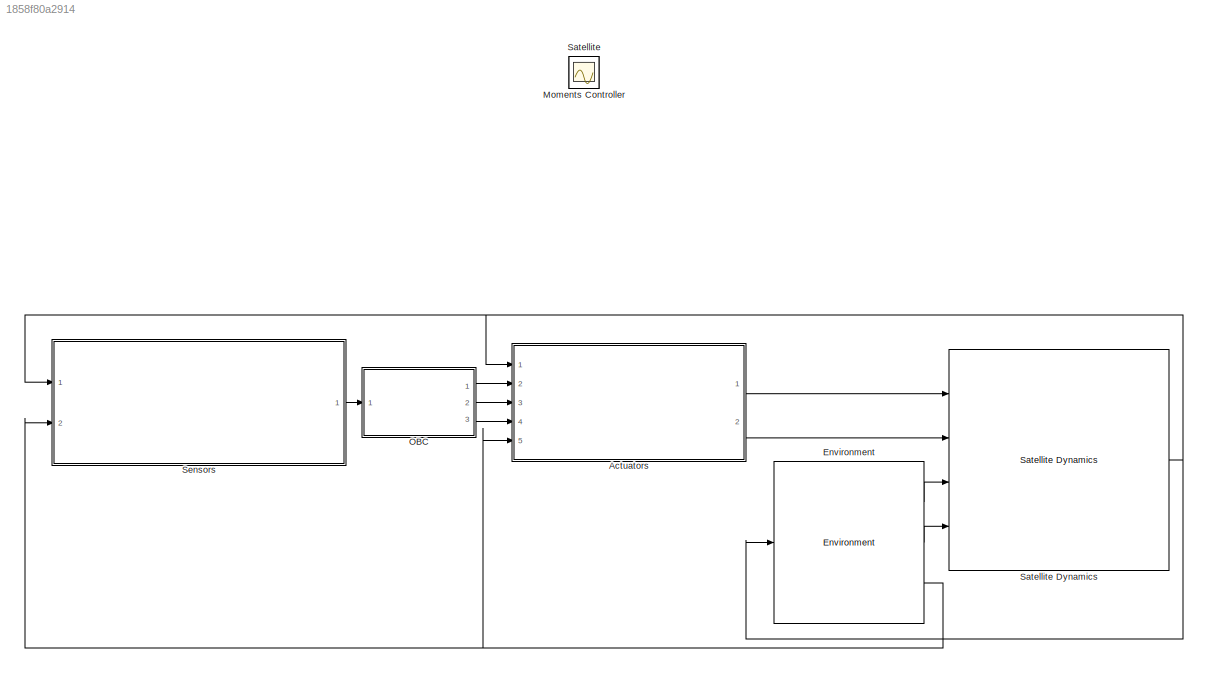
MODEL slx_1858f80a2914
KIND model
CONFIG AbsTol = auto
CONFIG EnableMultiTasking = off
CONFIG FixedStep = 0.0025
CONFIG MaxStep = 1
CONFIG MinStep = dT
CONFIG RelTol = 1e-3
CONFIG SampleTimeConstraint = Unconstrained
CONFIG Solver = ode14x
CONFIG SolverName = ode14x
CONFIG StartTime = 0.0
CONFIG StopTime = 1
WORKSPACE source: mxarray member
WORKSPACE actuators = 0
WORKSPACE delay = 1
WORKSPACE displacement = 1
WORKSPACE i_max = 1
WORKSPACE torq_max = 1
WORKSPACE vel_max = 1
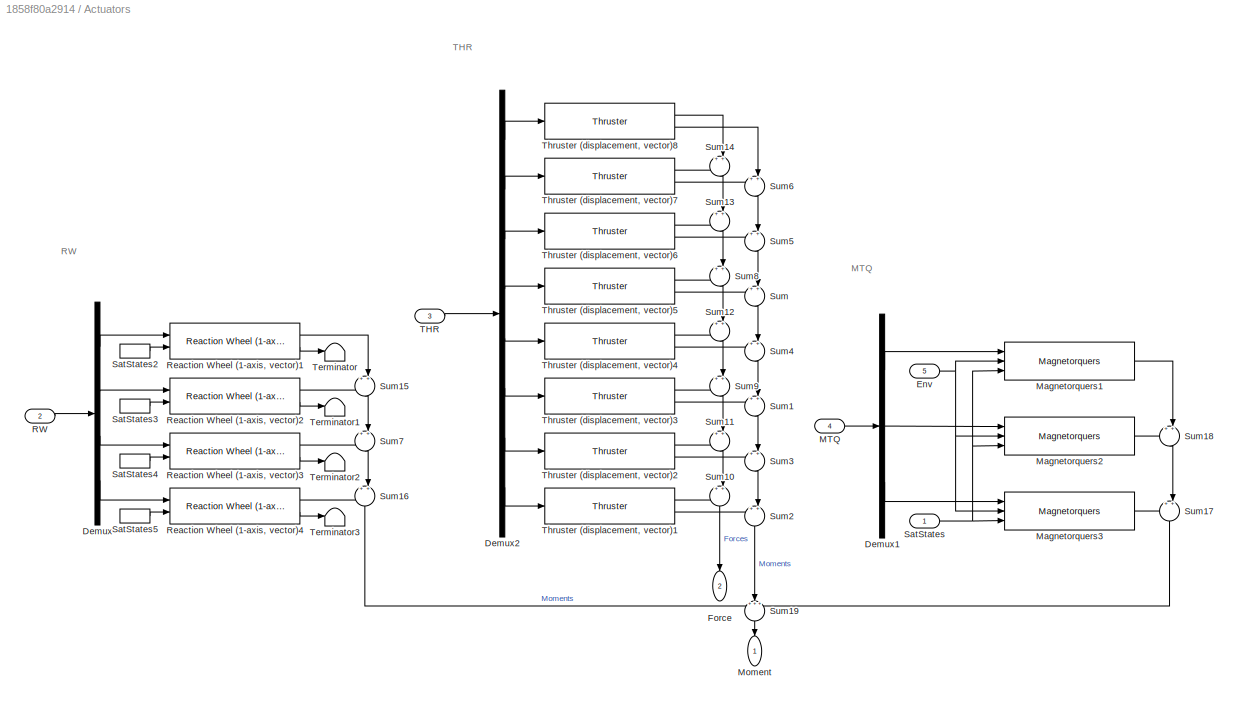
BLOCK [SubSystem] Actuators
  Ports = [5, 2]
  RequestExecContextInheritance = off
BLOCK [Demux] Actuators/Demux
  DisplayOption = bar
  Ports = [1, 4]
BLOCK [Demux] Actuators/Demux1
  DisplayOption = bar
  Outputs = 3
  Ports = [1, 3]
BLOCK [Demux] Actuators/Demux2
  DisplayOption = bar
  Outputs = 8
  Ports = [1, 8]
BLOCK [Inport] Actuators/Env
  IconDisplay = Port number
  Port = 5
BLOCK [Outport] Actuators/Force
  IconDisplay = Port number
  Port = 2
BLOCK [Inport] Actuators/MTQ
  IconDisplay = Port number
  Port = 4
BLOCK [Reference] Actuators/Magnetorquers1  REF=scars_library/Actuators/Magnetorquers  (lib defined in slx_0992aaab4a30)
  Ports = [3, 1]
  SourceBlock = scars_library/Actuators/Magnetorquers
BLOCK [Reference] Actuators/Magnetorquers2  REF=scars_library/Actuators/Magnetorquers  (lib defined in slx_0992aaab4a30)
  Ports = [3, 1]
  SourceBlock = scars_library/Actuators/Magnetorquers
BLOCK [Reference] Actuators/Magnetorquers3  REF=scars_library/Actuators/Magnetorquers  (lib defined in slx_0992aaab4a30)
  Ports = [3, 1]
  SourceBlock = scars_library/Actuators/Magnetorquers
BLOCK [Outport] Actuators/Moment
  IconDisplay = Port number
BLOCK [Inport] Actuators/RW
  IconDisplay = Port number
  Port = 2
BLOCK [Reference] Actuators/Reaction Wheel (1-axis, vector)1  REF=scars_library/Actuators/Reaction Wheel (1-axis, vector)  (lib defined in slx_0992aaab4a30)
  Ports = [2, 2]
  SourceBlock = scars_library/Actuators/Reaction Wheel (1-axis, vector)
  SourceType = Reaction Wheel
BLOCK [Reference] Actuators/Reaction Wheel (1-axis, vector)2  REF=scars_library/Actuators/Reaction Wheel (1-axis, vector)  (lib defined in slx_0992aaab4a30)
  Ports = [2, 2]
  SourceBlock = scars_library/Actuators/Reaction Wheel (1-axis, vector)
  SourceType = Reaction Wheel
BLOCK [Reference] Actuators/Reaction Wheel (1-axis, vector)3  REF=scars_library/Actuators/Reaction Wheel (1-axis, vector)  (lib defined in slx_0992aaab4a30)
  Ports = [2, 2]
  SourceBlock = scars_library/Actuators/Reaction Wheel (1-axis, vector)
  SourceType = Reaction Wheel
BLOCK [Reference] Actuators/Reaction Wheel (1-axis, vector)4  REF=scars_library/Actuators/Reaction Wheel (1-axis, vector)  (lib defined in slx_0992aaab4a30)
  Ports = [2, 2]
  SourceBlock = scars_library/Actuators/Reaction Wheel (1-axis, vector)
  SourceType = Reaction Wheel
BLOCK [Inport] Actuators/SatStates
  IconDisplay = Port number
BLOCK [InportShadow] Actuators/SatStates2
  IconDisplay = Port number
BLOCK [InportShadow] Actuators/SatStates3
  IconDisplay = Port number
BLOCK [InportShadow] Actuators/SatStates4
  IconDisplay = Port number
BLOCK [InportShadow] Actuators/SatStates5
  IconDisplay = Port number
BLOCK [Sum] Actuators/Sum
  IconShape = round
  InputSameDT = off
  Inputs = ++|
  OutDataTypeStr = Inherit: Inherit via internal rule
  Ports = [2, 1]
  SaturateOnIntegerOverflow = off
BLOCK [Sum] Actuators/Sum1
  IconShape = round
  InputSameDT = off
  Inputs = ++|
  OutDataTypeStr = Inherit: Inherit via internal rule
  Ports = [2, 1]
  SaturateOnIntegerOverflow = off
BLOCK [Sum] Actuators/Sum10
  IconShape = round
  InputSameDT = off
  Inputs = ++|
  OutDataTypeStr = Inherit: Inherit via internal rule
  Ports = [2, 1]
  SaturateOnIntegerOverflow = off
BLOCK [Sum] Actuators/Sum11
  IconShape = round
  InputSameDT = off
  Inputs = ++|
  OutDataTypeStr = Inherit: Inherit via internal rule
  Ports = [2, 1]
  SaturateOnIntegerOverflow = off
BLOCK [Sum] Actuators/Sum12
  IconShape = round
  InputSameDT = off
  Inputs = ++|
  OutDataTypeStr = Inherit: Inherit via internal rule
  Ports = [2, 1]
  SaturateOnIntegerOverflow = off
BLOCK [Sum] Actuators/Sum13
  IconShape = round
  InputSameDT = off
  Inputs = ++|
  OutDataTypeStr = Inherit: Inherit via internal rule
  Ports = [2, 1]
  SaturateOnIntegerOverflow = off
BLOCK [Sum] Actuators/Sum14
  IconShape = round
  InputSameDT = off
  Inputs = ++|
  OutDataTypeStr = Inherit: Inherit via internal rule
  Ports = [2, 1]
  SaturateOnIntegerOverflow = off
BLOCK [Sum] Actuators/Sum15
  IconShape = round
  InputSameDT = off
  Inputs = ++|
  OutDataTypeStr = Inherit: Inherit via internal rule
  Ports = [2, 1]
  SaturateOnIntegerOverflow = off
BLOCK [Sum] Actuators/Sum16
  IconShape = round
  InputSameDT = off
  Inputs = ++|
  OutDataTypeStr = Inherit: Inherit via internal rule
  Ports = [2, 1]
  SaturateOnIntegerOverflow = off
BLOCK [Sum] Actuators/Sum17
  IconShape = round
  InputSameDT = off
  Inputs = ++|
  OutDataTypeStr = Inherit: Inherit via internal rule
  Ports = [2, 1]
  SaturateOnIntegerOverflow = off
BLOCK [Sum] Actuators/Sum18
  IconShape = round
  InputSameDT = off
  Inputs = ++|
  OutDataTypeStr = Inherit: Inherit via internal rule
  Ports = [2, 1]
  SaturateOnIntegerOverflow = off
BLOCK [Sum] Actuators/Sum19
  IconShape = round
  InputSameDT = off
  Inputs = +++
  OutDataTypeStr = Inherit: Inherit via internal rule
  Ports = [3, 1]
  SaturateOnIntegerOverflow = off
BLOCK [Sum] Actuators/Sum2
  IconShape = round
  InputSameDT = off
  Inputs = ++|
  OutDataTypeStr = Inherit: Inherit via internal rule
  Ports = [2, 1]
  SaturateOnIntegerOverflow = off
BLOCK [Sum] Actuators/Sum3
  IconShape = round
  InputSameDT = off
  Inputs = ++|
  OutDataTypeStr = Inherit: Inherit via internal rule
  Ports = [2, 1]
  SaturateOnIntegerOverflow = off
BLOCK [Sum] Actuators/Sum4
  IconShape = round
  InputSameDT = off
  Inputs = ++|
  OutDataTypeStr = Inherit: Inherit via internal rule
  Ports = [2, 1]
  SaturateOnIntegerOverflow = off
BLOCK [Sum] Actuators/Sum5
  IconShape = round
  InputSameDT = off
  Inputs = ++|
  OutDataTypeStr = Inherit: Inherit via internal rule
  Ports = [2, 1]
  SaturateOnIntegerOverflow = off
BLOCK [Sum] Actuators/Sum6
  IconShape = round
  InputSameDT = off
  Inputs = ++|
  OutDataTypeStr = Inherit: Inherit via internal rule
  Ports = [2, 1]
  SaturateOnIntegerOverflow = off
BLOCK [Sum] Actuators/Sum7
  IconShape = round
  InputSameDT = off
  Inputs = ++|
  OutDataTypeStr = Inherit: Inherit via internal rule
  Ports = [2, 1]
  SaturateOnIntegerOverflow = off
BLOCK [Sum] Actuators/Sum8
  IconShape = round
  InputSameDT = off
  Inputs = ++|
  OutDataTypeStr = Inherit: Inherit via internal rule
  Ports = [2, 1]
  SaturateOnIntegerOverflow = off
BLOCK [Sum] Actuators/Sum9
  IconShape = round
  InputSameDT = off
  Inputs = ++|
  OutDataTypeStr = Inherit: Inherit via internal rule
  Ports = [2, 1]
  SaturateOnIntegerOverflow = off
BLOCK [Inport] Actuators/THR
  IconDisplay = Port number
  Port = 3
BLOCK [Terminator] Actuators/Terminator
BLOCK [Terminator] Actuators/Terminator1
BLOCK [Terminator] Actuators/Terminator2
BLOCK [Terminator] Actuators/Terminator3
BLOCK [Reference] Actuators/Thruster (displacement, vector)1  REF=scars_library/Actuators/Thruster  (lib defined in slx_0992aaab4a30)
  Ports = [1, 2]
  SourceBlock = scars_library/Actuators/Thruster
BLOCK [Reference] Actuators/Thruster (displacement, vector)2  REF=scars_library/Actuators/Thruster  (lib defined in slx_0992aaab4a30)
  Ports = [1, 2]
  SourceBlock = scars_library/Actuators/Thruster
BLOCK [Reference] Actuators/Thruster (displacement, vector)3  REF=scars_library/Actuators/Thruster  (lib defined in slx_0992aaab4a30)
  Ports = [1, 2]
  SourceBlock = scars_library/Actuators/Thruster
BLOCK [Reference] Actuators/Thruster (displacement, vector)4  REF=scars_library/Actuators/Thruster  (lib defined in slx_0992aaab4a30)
  Ports = [1, 2]
  SourceBlock = scars_library/Actuators/Thruster
BLOCK [Reference] Actuators/Thruster (displacement, vector)5  REF=scars_library/Actuators/Thruster  (lib defined in slx_0992aaab4a30)
  Ports = [1, 2]
  SourceBlock = scars_library/Actuators/Thruster
BLOCK [Reference] Actuators/Thruster (displacement, vector)6  REF=scars_library/Actuators/Thruster  (lib defined in slx_0992aaab4a30)
  Ports = [1, 2]
  SourceBlock = scars_library/Actuators/Thruster
BLOCK [Reference] Actuators/Thruster (displacement, vector)7  REF=scars_library/Actuators/Thruster  (lib defined in slx_0992aaab4a30)
  Ports = [1, 2]
  SourceBlock = scars_library/Actuators/Thruster
BLOCK [Reference] Actuators/Thruster (displacement, vector)8  REF=scars_library/Actuators/Thruster  (lib defined in slx_0992aaab4a30)
  Ports = [1, 2]
  SourceBlock = scars_library/Actuators/Thruster
BLOCK [Reference] Environment  REF=scars_library/Environment/Environment  (lib defined in slx_0992aaab4a30)
  Ports = [1, 3]
  SourceBlock = scars_library/Environment/Environment
BLOCK [Scope] Moments Controller
  Floating = off
  IOType = viewer
  NumInputPorts = 1
  Ports = []
  ScopeSpecificationString = Simulink.scopes.TimeScopeBlockCfg('CurrentConfiguration', extmgr.ConfigurationSet(extmgr.Configuration('Core','General UI',true),extmgr.Configuration('Core','Source UI',true),extmgr.Configuration('Sources','WiredSimulink',true,'DataLoggingVariableName','ScopeData3'),extmgr.Configuration('Visuals','Time Domain',true,'SerializedDisplays',{struct('MinYLimReal','-5.625','MaxYLimReal','50.625','YLabelR...<+5175ch>
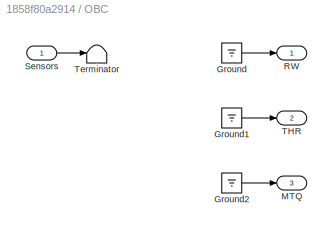
BLOCK [SubSystem] OBC
  Ports = [1, 3]
  RequestExecContextInheritance = off
BLOCK [Ground] OBC/Ground
BLOCK [Ground] OBC/Ground1
BLOCK [Ground] OBC/Ground2
BLOCK [Outport] OBC/MTQ
  IconDisplay = Port number
  Port = 3
BLOCK [Outport] OBC/RW
  IconDisplay = Port number
BLOCK [Inport] OBC/Sensors
  IconDisplay = Port number
BLOCK [Outport] OBC/THR
  IconDisplay = Port number
  Port = 2
BLOCK [Terminator] OBC/Terminator
BLOCK [Scope] Satellite
  Floating = off
  IOType = viewer
  NumInputPorts = 1
  Ports = []
  ScopeSpecificationString = Simulink.scopes.TimeScopeBlockCfg('CurrentConfiguration', extmgr.ConfigurationSet(extmgr.Configuration('Core','General UI',true),extmgr.Configuration('Core','Source UI',true),extmgr.Configuration('Sources','WiredSimulink',true,'DataLoggingVariableName','ScopeData1'),extmgr.Configuration('Visuals','Time Domain',true,'SerializedDisplays',{struct('MinYLimReal','-7025020.26675','MaxYLimReal','7677806....<+4911ch>
BLOCK [Reference] Satellite Dynamics  REF=scars_library/Standard/Satellite Dynamics  (lib defined in slx_0992aaab4a30)
  Ports = [4, 1]
  SourceBlock = scars_library/Standard/Satellite Dynamics
  SourceType = Sattellite Dynamics
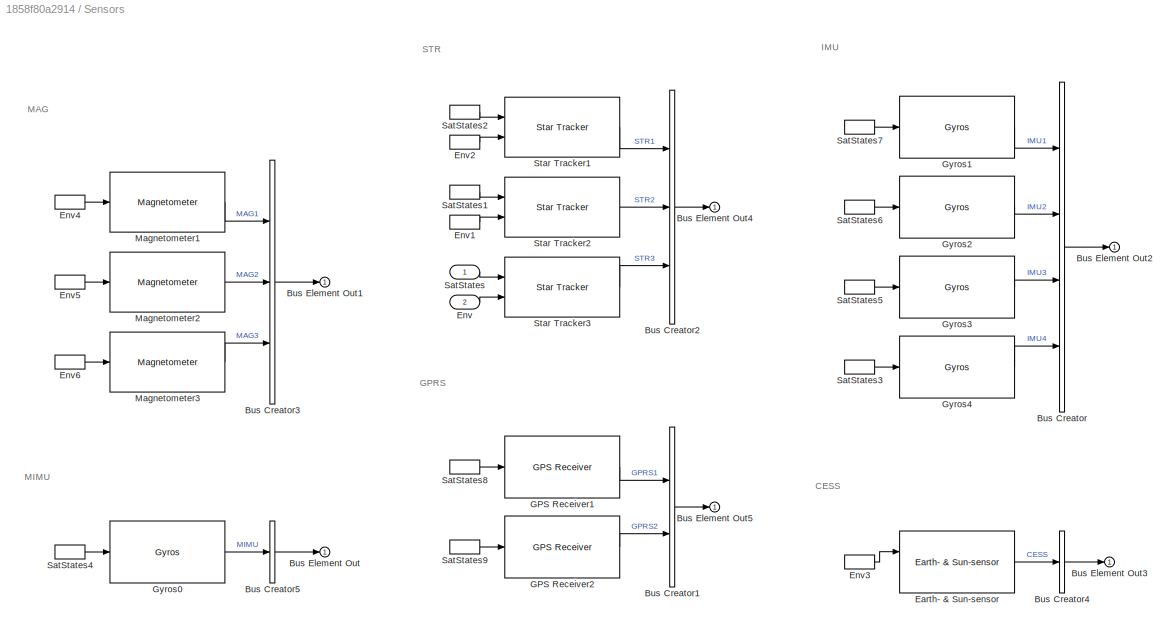
BLOCK [SubSystem] Sensors
  Ports = [2, 1]
  RequestExecContextInheritance = off
BLOCK [BusCreator] Sensors/Bus Creator
  DisplayOption = bar
  InheritFromInputs = on
  Inputs = 4
  Ports = [4, 1]
BLOCK [BusCreator] Sensors/Bus Creator1
  DisplayOption = bar
  InheritFromInputs = on
  Inputs = 2
  Ports = [2, 1]
BLOCK [BusCreator] Sensors/Bus Creator2
  DisplayOption = bar
  InheritFromInputs = on
  Inputs = 3
  Ports = [3, 1]
BLOCK [BusCreator] Sensors/Bus Creator3
  DisplayOption = bar
  InheritFromInputs = on
  Inputs = 3
  Ports = [3, 1]
BLOCK [BusCreator] Sensors/Bus Creator4
  DisplayOption = bar
  InheritFromInputs = on
  Inputs = 1
  Ports = [1, 1]
BLOCK [BusCreator] Sensors/Bus Creator5
  DisplayOption = bar
  InheritFromInputs = on
  Inputs = 1
  Ports = [1, 1]
BLOCK [Outport] Sensors/Bus Element Out
  IconDisplay = Port number
BLOCK [Outport] Sensors/Bus Element Out1
  IconDisplay = Port number
BLOCK [Outport] Sensors/Bus Element Out2
  IconDisplay = Port number
BLOCK [Outport] Sensors/Bus Element Out3
  IconDisplay = Port number
BLOCK [Outport] Sensors/Bus Element Out4
  IconDisplay = Port number
BLOCK [Outport] Sensors/Bus Element Out5
  IconDisplay = Port number
BLOCK [Reference] Sensors/Earth- & Sun-sensor  REF=scars_library/Sensors/Earth- & Sun-sensor  (lib defined in slx_0992aaab4a30)
  Ports = [2, 1]
  SourceBlock = scars_library/Sensors/Earth- & Sun-sensor
BLOCK [Inport] Sensors/Env 
  IconDisplay = Port number
  Port = 2
BLOCK [InportShadow] Sensors/Env1
  IconDisplay = Port number
  Port = 2
BLOCK [InportShadow] Sensors/Env2
  IconDisplay = Port number
  Port = 2
BLOCK [InportShadow] Sensors/Env3
  IconDisplay = Port number
  Port = 2
BLOCK [InportShadow] Sensors/Env4
  IconDisplay = Port number
  Port = 2
BLOCK [InportShadow] Sensors/Env5
  IconDisplay = Port number
  Port = 2
BLOCK [InportShadow] Sensors/Env6
  IconDisplay = Port number
  Port = 2
BLOCK [Reference] Sensors/GPS Receiver1  REF=scars_library/Sensors/GPS Receiver  (lib defined in slx_0992aaab4a30)
  Ports = [1, 1]
  SourceBlock = scars_library/Sensors/GPS Receiver
BLOCK [Reference] Sensors/GPS Receiver2  REF=scars_library/Sensors/GPS Receiver  (lib defined in slx_0992aaab4a30)
  Ports = [1, 1]
  SourceBlock = scars_library/Sensors/GPS Receiver
BLOCK [Reference] Sensors/Gyros0  REF=scars_library/Sensors/Gyros  (lib defined in slx_0992aaab4a30)
  Ports = [1, 1]
  SourceBlock = scars_library/Sensors/Gyros
BLOCK [Reference] Sensors/Gyros1  REF=scars_library/Sensors/Gyros  (lib defined in slx_0992aaab4a30)
  Ports = [1, 1]
  SourceBlock = scars_library/Sensors/Gyros
BLOCK [Reference] Sensors/Gyros2  REF=scars_library/Sensors/Gyros  (lib defined in slx_0992aaab4a30)
  Ports = [1, 1]
  SourceBlock = scars_library/Sensors/Gyros
BLOCK [Reference] Sensors/Gyros3  REF=scars_library/Sensors/Gyros  (lib defined in slx_0992aaab4a30)
  Ports = [1, 1]
  SourceBlock = scars_library/Sensors/Gyros
BLOCK [Reference] Sensors/Gyros4  REF=scars_library/Sensors/Gyros  (lib defined in slx_0992aaab4a30)
  Ports = [1, 1]
  SourceBlock = scars_library/Sensors/Gyros
BLOCK [Reference] Sensors/Magnetometer1  REF=scars_library/Sensors/Magnetometer  (lib defined in slx_0992aaab4a30)
  Ports = [1, 1]
  SourceBlock = scars_library/Sensors/Magnetometer
BLOCK [Reference] Sensors/Magnetometer2  REF=scars_library/Sensors/Magnetometer  (lib defined in slx_0992aaab4a30)
  Ports = [1, 1]
  SourceBlock = scars_library/Sensors/Magnetometer
BLOCK [Reference] Sensors/Magnetometer3  REF=scars_library/Sensors/Magnetometer  (lib defined in slx_0992aaab4a30)
  Ports = [1, 1]
  SourceBlock = scars_library/Sensors/Magnetometer
BLOCK [Inport] Sensors/SatStates 
  IconDisplay = Port number
BLOCK [InportShadow] Sensors/SatStates1
  IconDisplay = Port number
BLOCK [InportShadow] Sensors/SatStates2
  IconDisplay = Port number
BLOCK [InportShadow] Sensors/SatStates3
  IconDisplay = Port number
BLOCK [InportShadow] Sensors/SatStates4
  IconDisplay = Port number
BLOCK [InportShadow] Sensors/SatStates5
  IconDisplay = Port number
BLOCK [InportShadow] Sensors/SatStates6
  IconDisplay = Port number
BLOCK [InportShadow] Sensors/SatStates7
  IconDisplay = Port number
BLOCK [InportShadow] Sensors/SatStates8
  IconDisplay = Port number
BLOCK [InportShadow] Sensors/SatStates9
  IconDisplay = Port number
BLOCK [Reference] Sensors/Star Tracker1  REF=scars_library/Sensors/Star Tracker  (lib defined in slx_0992aaab4a30)
  Ports = [2, 1]
  SourceBlock = scars_library/Sensors/Star Tracker
BLOCK [Reference] Sensors/Star Tracker2  REF=scars_library/Sensors/Star Tracker  (lib defined in slx_0992aaab4a30)
  Ports = [2, 1]
  SourceBlock = scars_library/Sensors/Star Tracker
BLOCK [Reference] Sensors/Star Tracker3  REF=scars_library/Sensors/Star Tracker  (lib defined in slx_0992aaab4a30)
  Ports = [2, 1]
  SourceBlock = scars_library/Sensors/Star Tracker
ANNOTATION Actuators: MTQ
ANNOTATION Actuators: RW
ANNOTATION Actuators: THR
ANNOTATION Sensors: CESS
ANNOTATION Sensors: GPRS
ANNOTATION Sensors: IMU
ANNOTATION Sensors: MAG
ANNOTATION Sensors: MIMU
ANNOTATION Sensors: STR
LINE Actuators/Demux1:1 -> Actuators/Magnetorquers1:1
LINE Actuators/Demux1:2 -> Actuators/Magnetorquers2:1
LINE Actuators/Demux1:3 -> Actuators/Magnetorquers3:1
LINE Actuators/Demux2:1 -> Actuators/Thruster (displacement, vector)8:1
LINE Actuators/Demux2:2 -> Actuators/Thruster (displacement, vector)7:1
LINE Actuators/Demux2:3 -> Actuators/Thruster (displacement, vector)6:1
LINE Actuators/Demux2:4 -> Actuators/Thruster (displacement, vector)5:1
LINE Actuators/Demux2:5 -> Actuators/Thruster (displacement, vector)4:1
LINE Actuators/Demux2:6 -> Actuators/Thruster (displacement, vector)3:1
LINE Actuators/Demux2:7 -> Actuators/Thruster (displacement, vector)2:1
LINE Actuators/Demux2:8 -> Actuators/Thruster (displacement, vector)1:1
LINE Actuators/Demux:1 -> Actuators/Reaction Wheel (1-axis, vector)1:1
LINE Actuators/Demux:2 -> Actuators/Reaction Wheel (1-axis, vector)2:1
LINE Actuators/Demux:3 -> Actuators/Reaction Wheel (1-axis, vector)3:1
LINE Actuators/Demux:4 -> Actuators/Reaction Wheel (1-axis, vector)4:1
NET Actuators/Env:1 -> Actuators/Magnetorquers1:2, Actuators/Magnetorquers2:2, Actuators/Magnetorquers3:2
LINE Actuators/MTQ:1 -> Actuators/Demux1:1
LINE Actuators/Magnetorquers1:1 -> Actuators/Sum18:2
LINE Actuators/Magnetorquers2:1 -> Actuators/Sum18:1
LINE Actuators/Magnetorquers3:1 -> Actuators/Sum17:1
LINE Actuators/RW:1 -> Actuators/Demux:1
LINE Actuators/Reaction Wheel (1-axis, vector)1:1 -> Actuators/Sum15:2
LINE Actuators/Reaction Wheel (1-axis, vector)1:2 -> Actuators/Terminator:1
LINE Actuators/Reaction Wheel (1-axis, vector)2:1 -> Actuators/Sum15:1
LINE Actuators/Reaction Wheel (1-axis, vector)2:2 -> Actuators/Terminator1:1
LINE Actuators/Reaction Wheel (1-axis, vector)3:1 -> Actuators/Sum7:1
LINE Actuators/Reaction Wheel (1-axis, vector)3:2 -> Actuators/Terminator2:1
LINE Actuators/Reaction Wheel (1-axis, vector)4:1 -> Actuators/Sum16:1
LINE Actuators/Reaction Wheel (1-axis, vector)4:2 -> Actuators/Terminator3:1
LINE Actuators/SatStates2:1 -> Actuators/Reaction Wheel (1-axis, vector)1:2
LINE Actuators/SatStates3:1 -> Actuators/Reaction Wheel (1-axis, vector)2:2
LINE Actuators/SatStates4:1 -> Actuators/Reaction Wheel (1-axis, vector)3:2
LINE Actuators/SatStates5:1 -> Actuators/Reaction Wheel (1-axis, vector)4:2
NET Actuators/SatStates:1 -> Actuators/Magnetorquers1:3, Actuators/Magnetorquers2:3, Actuators/Magnetorquers3:3
LINE Actuators/Sum10:1 -> Actuators/Force:1
LINE Actuators/Sum11:1 -> Actuators/Sum10:2
LINE Actuators/Sum12:1 -> Actuators/Sum9:2
LINE Actuators/Sum13:1 -> Actuators/Sum8:2
LINE Actuators/Sum14:1 -> Actuators/Sum13:2
LINE Actuators/Sum15:1 -> Actuators/Sum7:2
LINE Actuators/Sum16:1 -> Actuators/Sum19:1
LINE Actuators/Sum17:1 -> Actuators/Sum19:3
LINE Actuators/Sum18:1 -> Actuators/Sum17:2
LINE Actuators/Sum19:1 -> Actuators/Moment:1
LINE Actuators/Sum1:1 -> Actuators/Sum3:2
LINE Actuators/Sum2:1 -> Actuators/Sum19:2
LINE Actuators/Sum3:1 -> Actuators/Sum2:2
LINE Actuators/Sum4:1 -> Actuators/Sum1:2
LINE Actuators/Sum5:1 -> Actuators/Sum:2
LINE Actuators/Sum6:1 -> Actuators/Sum5:2
LINE Actuators/Sum7:1 -> Actuators/Sum16:2
LINE Actuators/Sum8:1 -> Actuators/Sum12:2
LINE Actuators/Sum9:1 -> Actuators/Sum11:2
LINE Actuators/Sum:1 -> Actuators/Sum4:2
LINE Actuators/THR:1 -> Actuators/Demux2:1
LINE Actuators/Thruster (displacement, vector)1:1 -> Actuators/Sum10:1
LINE Actuators/Thruster (displacement, vector)1:2 -> Actuators/Sum2:1
LINE Actuators/Thruster (displacement, vector)2:1 -> Actuators/Sum11:1
LINE Actuators/Thruster (displacement, vector)2:2 -> Actuators/Sum3:1
LINE Actuators/Thruster (displacement, vector)3:1 -> Actuators/Sum9:1
LINE Actuators/Thruster (displacement, vector)3:2 -> Actuators/Sum1:1
LINE Actuators/Thruster (displacement, vector)4:1 -> Actuators/Sum12:1
LINE Actuators/Thruster (displacement, vector)4:2 -> Actuators/Sum4:1
LINE Actuators/Thruster (displacement, vector)5:1 -> Actuators/Sum8:1
LINE Actuators/Thruster (displacement, vector)5:2 -> Actuators/Sum:1
LINE Actuators/Thruster (displacement, vector)6:1 -> Actuators/Sum13:1
LINE Actuators/Thruster (displacement, vector)6:2 -> Actuators/Sum5:1
LINE Actuators/Thruster (displacement, vector)7:1 -> Actuators/Sum14:1
LINE Actuators/Thruster (displacement, vector)7:2 -> Actuators/Sum6:1
LINE Actuators/Thruster (displacement, vector)8:1 -> Actuators/Sum14:2
LINE Actuators/Thruster (displacement, vector)8:2 -> Actuators/Sum6:2
LINE Actuators:1 -> Satellite Dynamics:1
LINE Actuators:2 -> Satellite Dynamics:2
LINE Environment:1 -> Satellite Dynamics:3
LINE Environment:2 -> Satellite Dynamics:4
NET Environment:3 -> Actuators:5, Sensors:2
LINE OBC/Ground1:1 -> OBC/THR:1
LINE OBC/Ground2:1 -> OBC/MTQ:1
LINE OBC/Ground:1 -> OBC/RW:1
LINE OBC/Sensors:1 -> OBC/Terminator:1
LINE OBC:1 -> Actuators:2
LINE OBC:2 -> Actuators:3
LINE OBC:3 -> Actuators:4
NET Satellite Dynamics:1 -> Actuators:1, Environment:1, Sensors:1
LINE Sensors/Bus Creator1:1 -> Sensors/Bus Element Out5:1
LINE Sensors/Bus Creator2:1 -> Sensors/Bus Element Out4:1
LINE Sensors/Bus Creator3:1 -> Sensors/Bus Element Out1:1
LINE Sensors/Bus Creator4:1 -> Sensors/Bus Element Out3:1
LINE Sensors/Bus Creator5:1 -> Sensors/Bus Element Out:1
LINE Sensors/Bus Creator:1 -> Sensors/Bus Element Out2:1
LINE Sensors/Earth- & Sun-sensor:1 -> Sensors/Bus Creator4:1
LINE Sensors/Env :1 -> Sensors/Star Tracker3:2
LINE Sensors/Env1:1 -> Sensors/Star Tracker2:2
LINE Sensors/Env2:1 -> Sensors/Star Tracker1:2
LINE Sensors/Env3:1 -> Sensors/Earth- & Sun-sensor:1
LINE Sensors/Env4:1 -> Sensors/Magnetometer1:1
LINE Sensors/Env5:1 -> Sensors/Magnetometer2:1
LINE Sensors/Env6:1 -> Sensors/Magnetometer3:1
LINE Sensors/GPS Receiver1:1 -> Sensors/Bus Creator1:1
LINE Sensors/GPS Receiver2:1 -> Sensors/Bus Creator1:2
LINE Sensors/Gyros0:1 -> Sensors/Bus Creator5:1
LINE Sensors/Gyros1:1 -> Sensors/Bus Creator:1
LINE Sensors/Gyros2:1 -> Sensors/Bus Creator:2
LINE Sensors/Gyros3:1 -> Sensors/Bus Creator:3
LINE Sensors/Gyros4:1 -> Sensors/Bus Creator:4
LINE Sensors/Magnetometer1:1 -> Sensors/Bus Creator3:1
LINE Sensors/Magnetometer2:1 -> Sensors/Bus Creator3:2
LINE Sensors/Magnetometer3:1 -> Sensors/Bus Creator3:3
LINE Sensors/SatStates :1 -> Sensors/Star Tracker3:1
LINE Sensors/SatStates1:1 -> Sensors/Star Tracker2:1
LINE Sensors/SatStates2:1 -> Sensors/Star Tracker1:1
LINE Sensors/SatStates3:1 -> Sensors/Gyros4:1
LINE Sensors/SatStates4:1 -> Sensors/Gyros0:1
LINE Sensors/SatStates5:1 -> Sensors/Gyros3:1
LINE Sensors/SatStates6:1 -> Sensors/Gyros2:1
LINE Sensors/SatStates7:1 -> Sensors/Gyros1:1
LINE Sensors/SatStates8:1 -> Sensors/GPS Receiver1:1
LINE Sensors/SatStates9:1 -> Sensors/GPS Receiver2:1
LINE Sensors/Star Tracker1:1 -> Sensors/Bus Creator2:1
LINE Sensors/Star Tracker2:1 -> Sensors/Bus Creator2:2
LINE Sensors/Star Tracker3:1 -> Sensors/Bus Creator2:3
LINE Sensors:1 -> OBC:1
note: NET lines group one-source signal fan-out (src -> all destinations, sorted); 1:1 wires keep LINE
